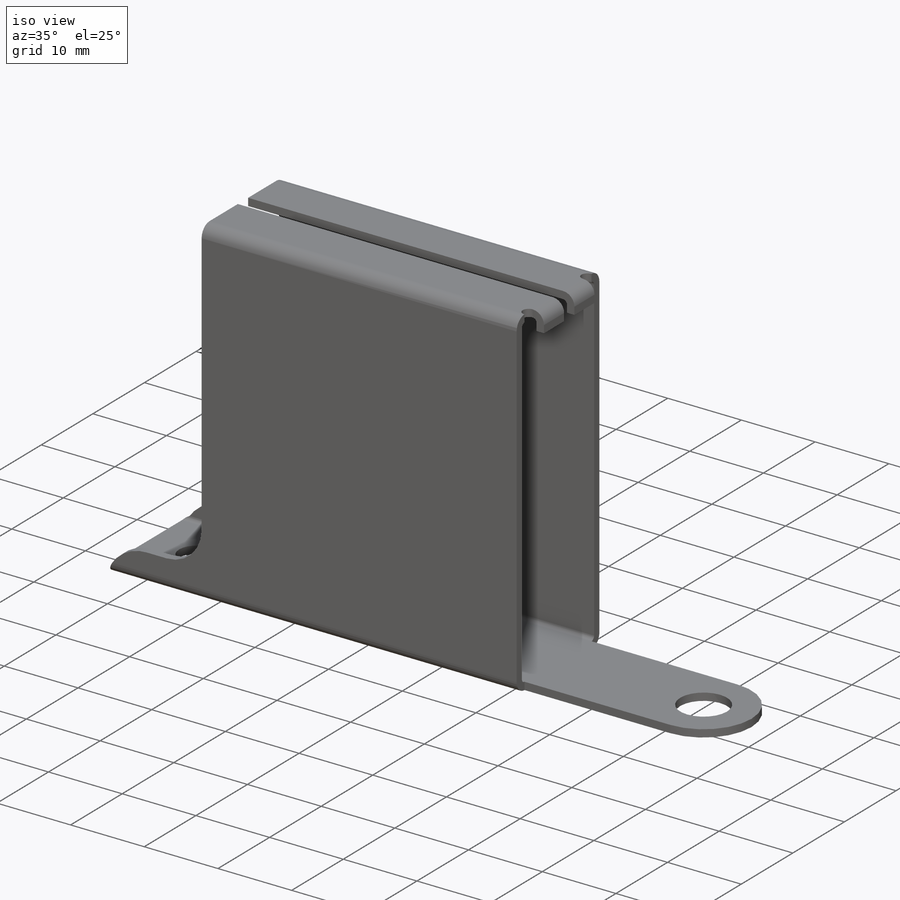
[diagram: iso view]
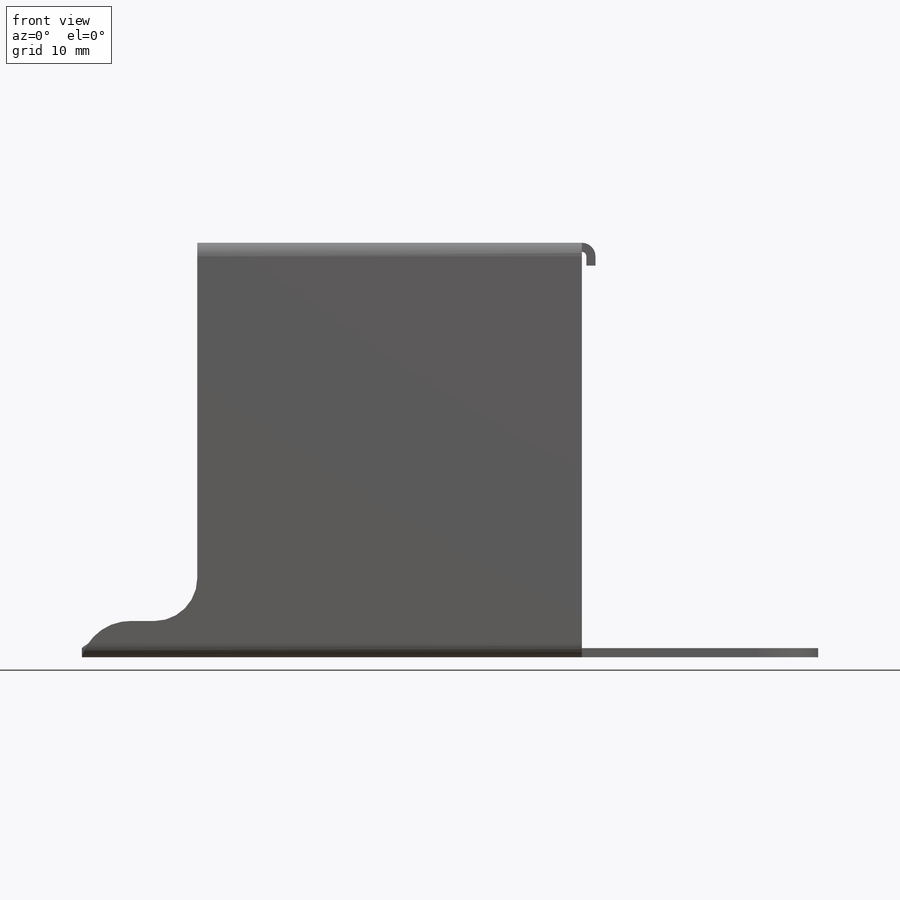
[diagram: front view]
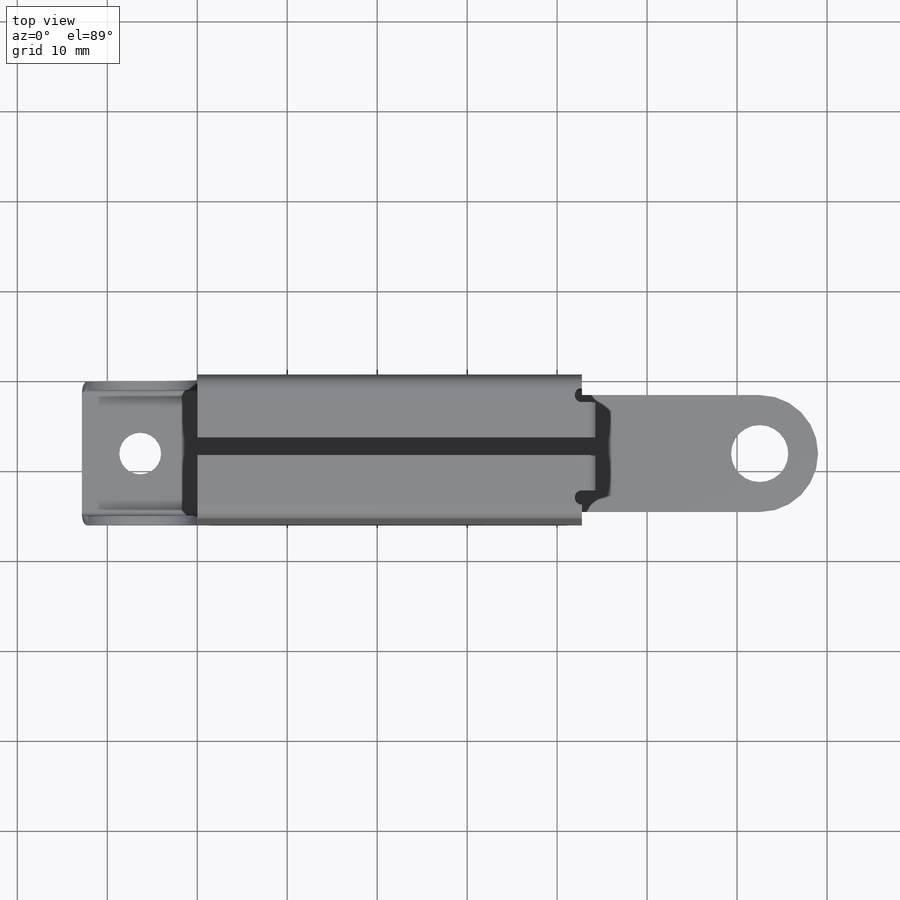
[diagram: top view]
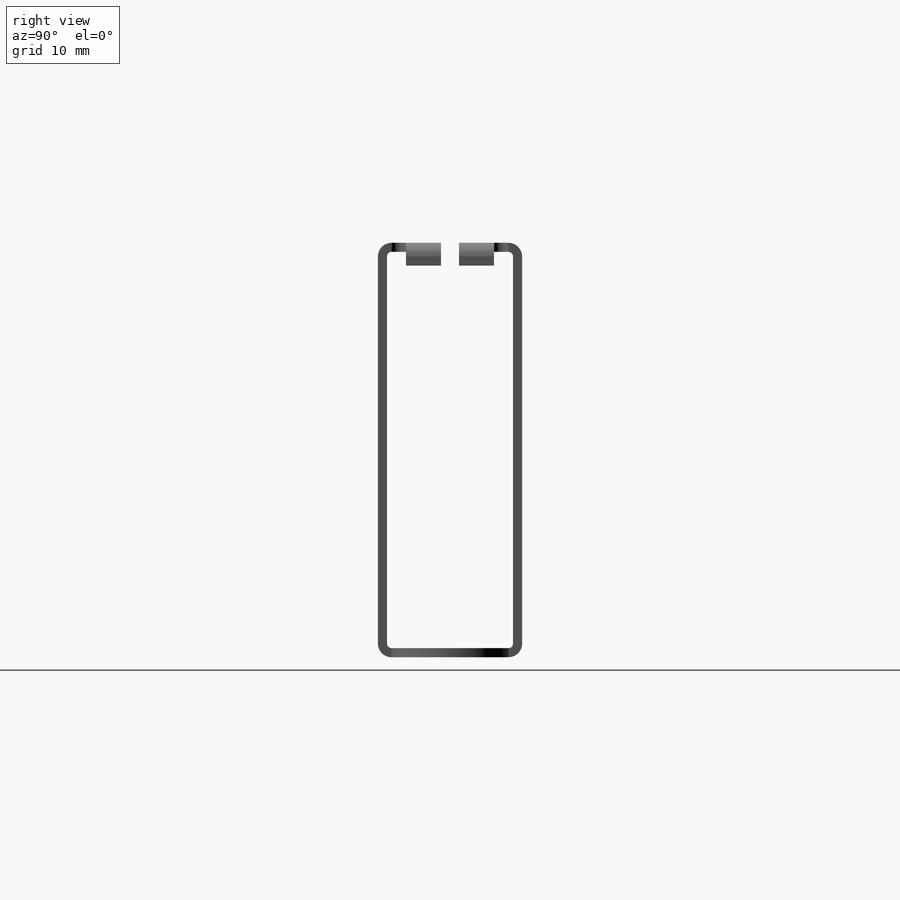
[diagram: right view]
SOLIDWORKS PART (.sldprt)
format: sldprt  version: not decoded by parser v0  size: 379,392 bytes
history: native  units: mm
features: sketch x10, cut_extrude x3, fillet x2, sheet_metal_op x2, material x1, extrude x1 + 6 further entries (+16 scaffold rows collapsed; 1 parser-record rows omitted)
feature tree (42):
  scaffold x16  (default folders/planes/origin — collapsed)
  material  "6063-T6"
  sketch  "Sketch1"  dims[D1=42.7482mm D2=46.0756mm D3=55.5752mm D4=4.0259mm]
  extrude  "Extrude1"  Depth=16.0401mm
  fillet  "Fillet1"  Radius=4.7625mm
  fillet  "Fillet2"  Radius=5.55625mm
  sketch  "Sketch4"  dims[D3=78.7908mm D1=1.016mm D2=1.016mm]
  sketch  "Sketch8"
  sheet_metal_op  "Sheet-Metal5"  Thickness=1.016mm SharpBend19=0 SharpBend20=0 SharpBend21=0
  sketch  "Sketch21"  dims[c1.EdgeBend3=0.0 c1.D1=0.508mm c1.D4=90.0deg c1.D5=5.0 c1.D8=0.508mm c1.D9=0.508mm c2.D1=0.508mm c2.D2=500.0mm c2.D3=0.0mm c2.D6=10.0mm c2.D7=1.524mm]
  sketch  "Sketch24"  dims[c1.EdgeBend4=0.0 c1.D1=0.508mm c1.D4=90.0deg c1.D5=6.0 c1.D8=0.508mm c1.D9=0.508mm c2.D1=0.508mm c2.D2=500.0mm c2.D3=0.0mm c2.D6=10.0mm c2.D7=1.524mm]
  sketch  "Sketch28"  dims[D1=22.9743mm]
  sheet_metal_op  "Base-Flange1"
  sketch  "Sketch29"  dims[D1=1.6002mm]
  cut_extrude  "Extrude6"  [1 undecoded]
  sketch  "Sketch30"  dims[D1=4.6355mm D2=4.1656mm]
  cut_extrude  "Extrude7"  [1 undecoded]
  sketch  "Sketch31"  dims[c1.D1=12.7508mm c1.D3=12.7508mm c1.D2=22.86mm c2.D3=4.1656mm]
  cut_extrude  "Extrude8"  [1 undecoded]
  "Flat-Pattern5"
  sketch  "Bend-Lines5"
  "Flatten-<SharpBend19>1"
  "Flatten-<SharpBend20>1"
  "Flatten-<SharpBend21>1"
  "Flatten-<EdgeBend3>1"
  "Flatten-<EdgeBend4>1"
  parser-record x1  (decoder bookkeeping rows leaked as tree rows — omitted from the tree; the rows remain in map.json)
decode coverage: 12 of 18 modeling features carry decoded parameters; 6 rows unclassified (native names shown)
note: 3 parameter values undecoded
summary: no parameter record found for 3 features
note: suppression state not decoded; provenance and decode notes live in map.json
